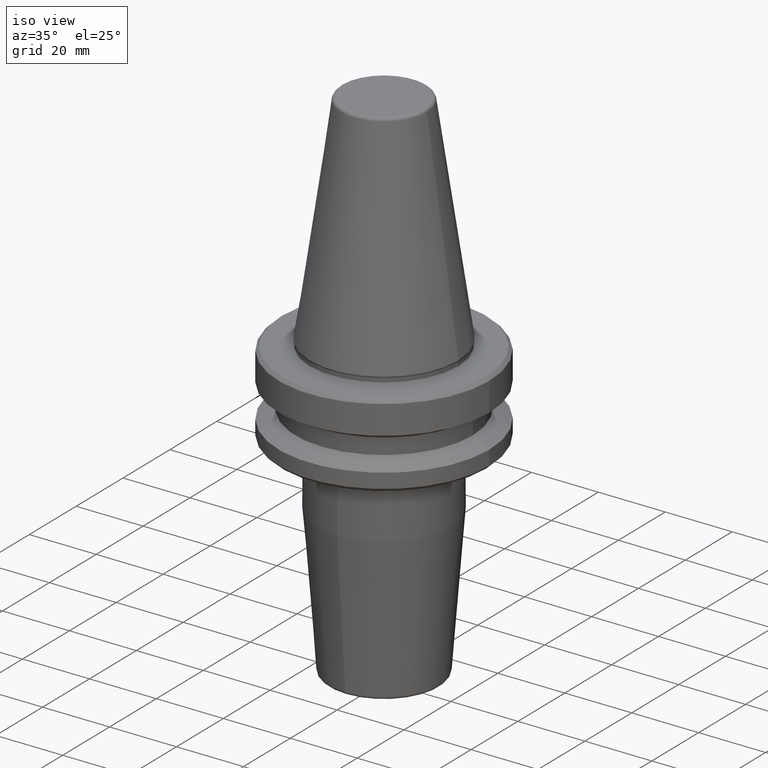
[diagram: clean part render]
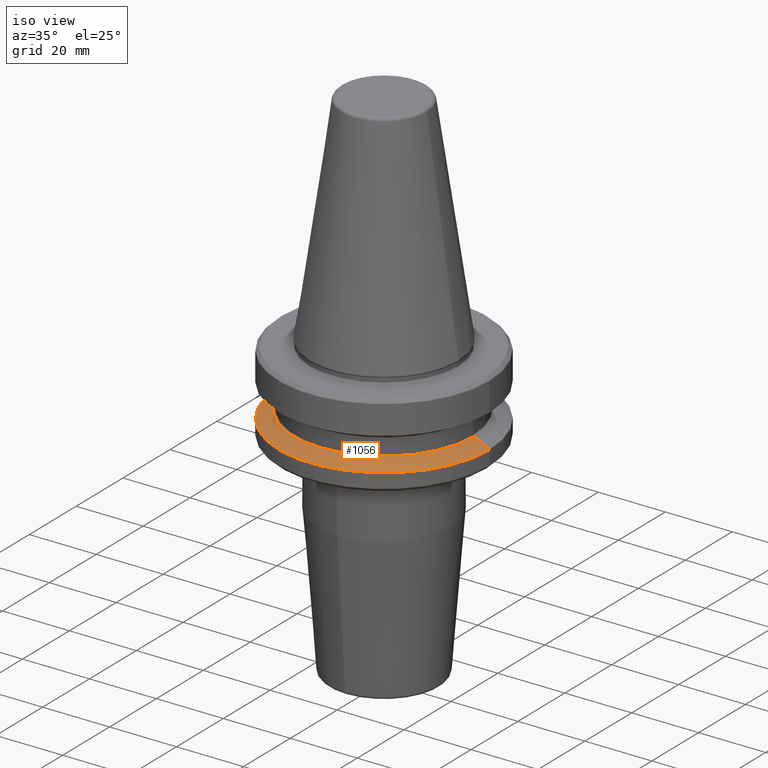
[diagram: same view with one face highlighted and labeled with its STEP entity id]
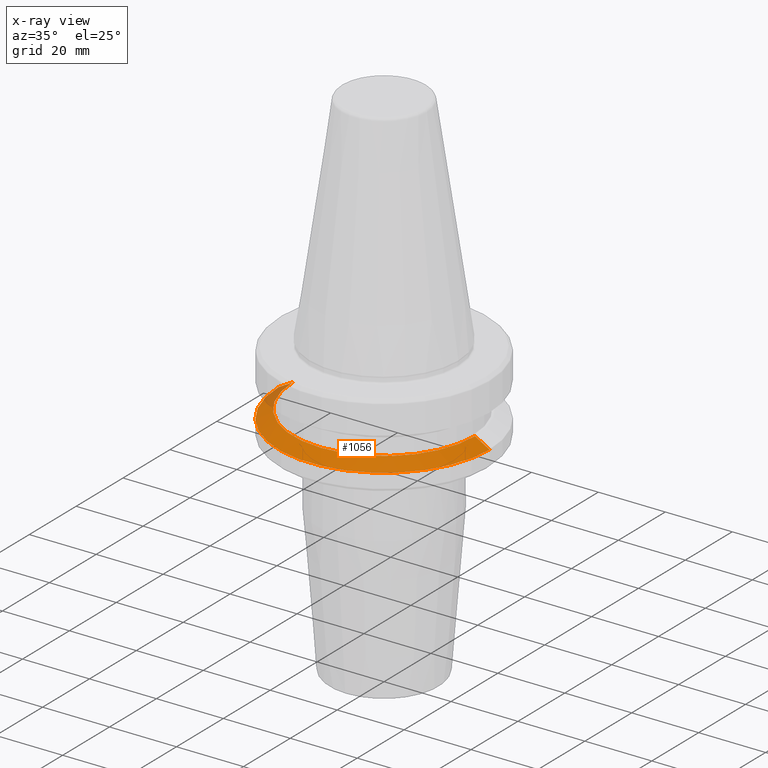
[diagram: x-ray of the same camera — body ghosted, the highlighted face saturated]
A machine part, iso view. The second image highlights one B-rep face of the part: STEP entity #1056.
The next image is the same camera in x-ray: the body ghosted, the highlighted face saturated — about 4% of this face is hidden behind the body in this view.
In plain terms, the highlighted conical surface has half-angle 60 deg.
Its self-contained STEP definition (entity closure, byte-faithful):
#16 = ORIENTED_EDGE ( 'NONE', *, *, #1240, .F. ) ;
#26 = CARTESIAN_POINT ( 'NONE',  ( 31.50000000000000000, 0.0000000000000000000, -21.60014200631675500 ) ) ;
#36 = AXIS2_PLACEMENT_3D ( 'NONE', #494, #1183, #599 ) ;
#76 = VERTEX_POINT ( 'NONE', #104 ) ;
#80 = VECTOR ( 'NONE', #425, 1000.000000000000000 ) ;
#104 = CARTESIAN_POINT ( 'NONE',  ( 27.16962701892216700, 3.592478546794605500E-015, -19.10000000000000500 ) ) ;
#158 = VERTEX_POINT ( 'NONE', #950 ) ;
#187 = ORIENTED_EDGE ( 'NONE', *, *, #1041, .F. ) ;
#193 = CONICAL_SURFACE ( 'NONE', #195, 27.16962701892216700, 1.047197551196601200 ) ;
#195 = AXIS2_PLACEMENT_3D ( 'NONE', #1245, #1053, #1148 ) ;
#225 = CARTESIAN_POINT ( 'NONE',  ( 0.0000000000000000000, 0.0000000000000000000, -21.60014200631675500 ) ) ;
#300 = ORIENTED_EDGE ( 'NONE', *, *, #788, .T. ) ;
#317 = CIRCLE ( 'NONE', #402, 31.50000000000000000 ) ;
#322 = DIRECTION ( 'NONE',  ( 1.000000000000000000, 0.0000000000000000000, 0.0000000000000000000 ) ) ;
#342 = LINE ( 'NONE', #722, #80 ) ;
#357 = DIRECTION ( 'NONE',  ( 0.8660254037844403700, 1.060575238724909000E-016, -0.4999999999999970000 ) ) ;
#402 = AXIS2_PLACEMENT_3D ( 'NONE', #225, #919, #322 ) ;
#407 = EDGE_CURVE ( 'NONE', #710, #158, #342, .T. ) ;
#425 = DIRECTION ( 'NONE',  ( -0.8660254037844403700, 0.0000000000000000000, -0.4999999999999970000 ) ) ;
#494 = CARTESIAN_POINT ( 'NONE',  ( 0.0000000000000000000, 0.0000000000000000000, -19.10000000000000500 ) ) ;
#516 = LINE ( 'NONE', #955, #1270 ) ;
#584 = EDGE_LOOP ( 'NONE', ( #187, #16, #961, #300 ) ) ;
#599 = DIRECTION ( 'NONE',  ( 1.000000000000000000, 0.0000000000000000000, 0.0000000000000000000 ) ) ;
#710 = VERTEX_POINT ( 'NONE', #713 ) ;
#713 = CARTESIAN_POINT ( 'NONE',  ( -27.16962701892216700, 0.0000000000000000000, -19.10000000000000500 ) ) ;
#722 = CARTESIAN_POINT ( 'NONE',  ( -27.16962701892216700, 0.0000000000000000000, -19.10000000000000500 ) ) ;
#788 = EDGE_CURVE ( 'NONE', #158, #800, #317, .T. ) ;
#800 = VERTEX_POINT ( 'NONE', #26 ) ;
#858 = CIRCLE ( 'NONE', #36, 27.16962701892216700 ) ;
#919 = DIRECTION ( 'NONE',  ( -0.0000000000000000000, -0.0000000000000000000, 1.000000000000000000 ) ) ;
#950 = CARTESIAN_POINT ( 'NONE',  ( -31.50000000000000000, 3.857637417314162700E-015, -21.60014200631675500 ) ) ;
#955 = CARTESIAN_POINT ( 'NONE',  ( 27.16962701892216700, 3.327319676275047600E-015, -19.10000000000000500 ) ) ;
#961 = ORIENTED_EDGE ( 'NONE', *, *, #407, .T. ) ;
#980 = FACE_OUTER_BOUND ( 'NONE', #584, .T. ) ;
#1041 = EDGE_CURVE ( 'NONE', #76, #800, #516, .T. ) ;
#1053 = DIRECTION ( 'NONE',  ( 0.0000000000000000000, 0.0000000000000000000, -1.000000000000000000 ) ) ;
#1056 = ADVANCED_FACE ( 'NONE', ( #980 ), #193, .T. ) ;
#1148 = DIRECTION ( 'NONE',  ( -1.000000000000000000, 0.0000000000000000000, 0.0000000000000000000 ) ) ;
#1183 = DIRECTION ( 'NONE',  ( -0.0000000000000000000, -0.0000000000000000000, 1.000000000000000000 ) ) ;
#1240 = EDGE_CURVE ( 'NONE', #710, #76, #858, .T. ) ;
#1245 = CARTESIAN_POINT ( 'NONE',  ( 0.0000000000000000000, 0.0000000000000000000, -19.10000000000000500 ) ) ;
#1270 = VECTOR ( 'NONE', #357, 1000.000000000000000 ) ;